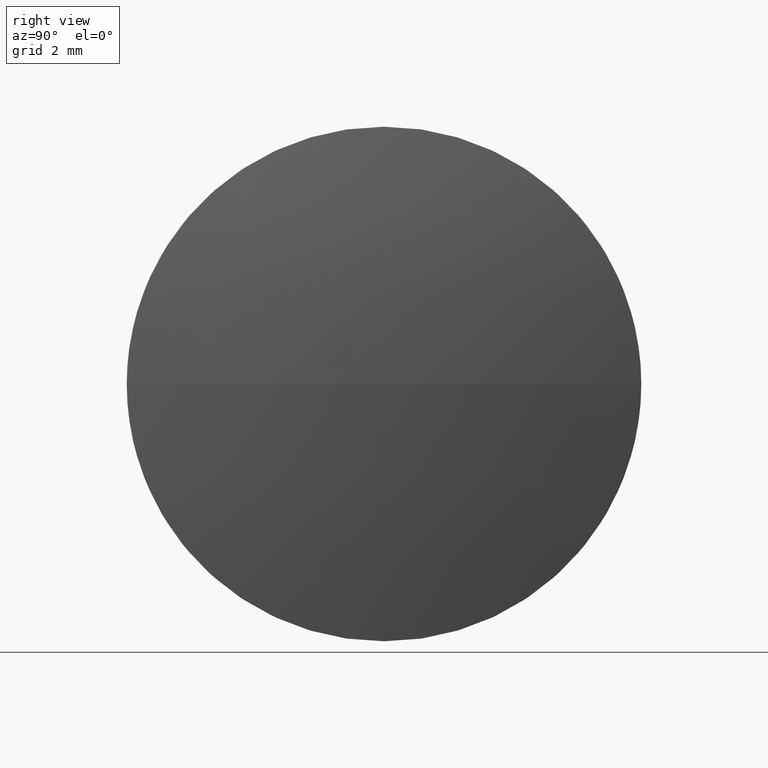
[diagram: clean part render]
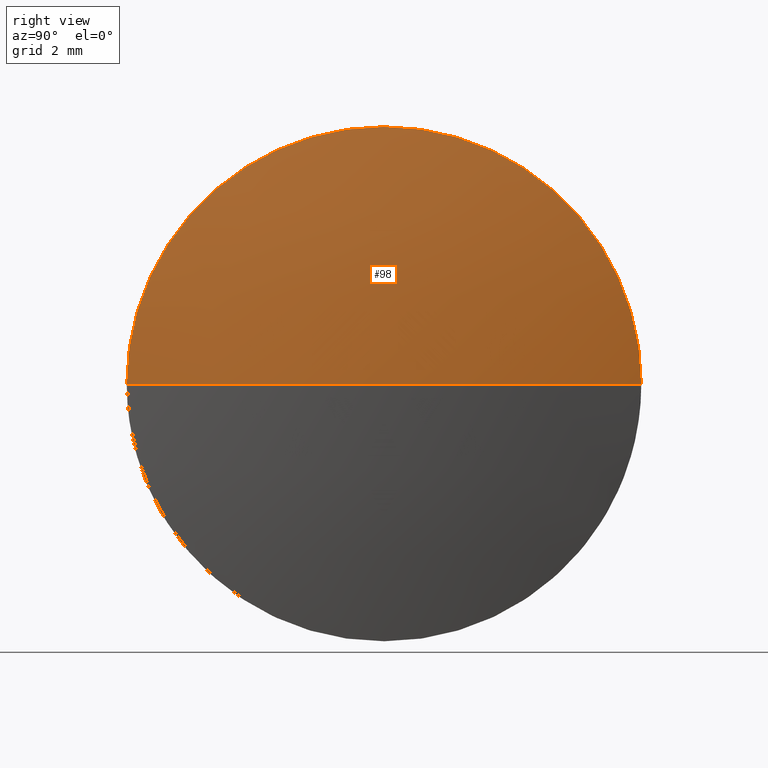
[diagram: same view with one face highlighted and labeled with its STEP entity id]
A machine part, right view. The second image highlights one B-rep face of the part: STEP entity #98.
In plain terms, the highlighted spherical surface has radius 41.4156 mm.
Its self-contained STEP definition (entity closure, byte-faithful):
#2 = EDGE_CURVE ( 'NONE', #76, #46, #73, .T. ) ;
#3 = SPHERICAL_SURFACE ( 'NONE', #153, 41.41564102564099400 ) ;
#5 = EDGE_CURVE ( 'NONE', #178, #121, #142, .T. ) ;
#7 = DIRECTION ( 'NONE',  ( 0.0000000000000000000, 0.0000000000000000000, 1.000000000000000000 ) ) ;
#10 = CARTESIAN_POINT ( 'NONE',  ( 609.6443734842783900, 155.6021442105514700, 0.0000000000000000000 ) ) ;
#12 = CIRCLE ( 'NONE', #79, 41.41564102564099400 ) ;
#20 = EDGE_CURVE ( 'NONE', #46, #178, #84, .T. ) ;
#30 = AXIS2_PLACEMENT_3D ( 'NONE', #33, #150, #166 ) ;
#33 = CARTESIAN_POINT ( 'NONE',  ( 569.0087324586373800, 147.6021442105514400, 0.0000000000000000000 ) ) ;
#46 = VERTEX_POINT ( 'NONE', #133 ) ;
#53 = DIRECTION ( 'NONE',  ( 0.0000000000000000000, 0.0000000000000000000, 1.000000000000000000 ) ) ;
#58 = EDGE_CURVE ( 'NONE', #76, #121, #12, .T. ) ;
#60 = DIRECTION ( 'NONE',  ( -0.0000000000000000000, 0.0000000000000000000, 1.000000000000000000 ) ) ;
#61 = EDGE_LOOP ( 'NONE', ( #181, #129, #167, #80 ) ) ;
#64 = CARTESIAN_POINT ( 'NONE',  ( 569.0087324586373800, 147.6021442105514400, 0.0000000000000000000 ) ) ;
#65 = DIRECTION ( 'NONE',  ( -1.000000000000000000, -0.0000000000000000000, -0.0000000000000000000 ) ) ;
#73 = CIRCLE ( 'NONE', #30, 41.41564102564099400 ) ;
#76 = VERTEX_POINT ( 'NONE', #86 ) ;
#77 = CARTESIAN_POINT ( 'NONE',  ( 609.6443734842783900, 147.6021442105515000, 0.0000000000000000000 ) ) ;
#79 = AXIS2_PLACEMENT_3D ( 'NONE', #104, #60, #176 ) ;
#80 = ORIENTED_EDGE ( 'NONE', *, *, #20, .F. ) ;
#84 = CIRCLE ( 'NONE', #157, 7.999999999999979600 ) ;
#86 = CARTESIAN_POINT ( 'NONE',  ( 610.4243734842783600, 147.6021442105514400, 0.0000000000000000000 ) ) ;
#91 = DIRECTION ( 'NONE',  ( 0.0000000000000000000, 1.000000000000000000, 0.0000000000000000000 ) ) ;
#93 = DIRECTION ( 'NONE',  ( -0.0000000000000000000, 0.0000000000000000000, -1.000000000000000000 ) ) ;
#95 = DIRECTION ( 'NONE',  ( -1.000000000000000000, -0.0000000000000000000, -0.0000000000000000000 ) ) ;
#98 = ADVANCED_FACE ( 'NONE', ( #185 ), #3, .T. ) ;
#104 = CARTESIAN_POINT ( 'NONE',  ( 569.0087324586373800, 147.6021442105514400, 0.0000000000000000000 ) ) ;
#121 = VERTEX_POINT ( 'NONE', #10 ) ;
#129 = ORIENTED_EDGE ( 'NONE', *, *, #58, .T. ) ;
#133 = CARTESIAN_POINT ( 'NONE',  ( 609.6443734842783900, 139.6021442105515000, -9.797174393178782300E-016 ) ) ;
#142 = CIRCLE ( 'NONE', #145, 7.999999999999979600 ) ;
#145 = AXIS2_PLACEMENT_3D ( 'NONE', #77, #95, #53 ) ;
#148 = CARTESIAN_POINT ( 'NONE',  ( 609.6443734842783900, 147.6021442105515000, 0.0000000000000000000 ) ) ;
#150 = DIRECTION ( 'NONE',  ( 0.0000000000000000000, 1.224646799147353200E-016, -1.000000000000000000 ) ) ;
#153 = AXIS2_PLACEMENT_3D ( 'NONE', #64, #93, #91 ) ;
#157 = AXIS2_PLACEMENT_3D ( 'NONE', #148, #65, #7 ) ;
#166 = DIRECTION ( 'NONE',  ( 0.0000000000000000000, 1.000000000000000000, 1.224646799147353200E-016 ) ) ;
#167 = ORIENTED_EDGE ( 'NONE', *, *, #5, .F. ) ;
#170 = CARTESIAN_POINT ( 'NONE',  ( 609.6443734842783900, 147.6021442105515000, 7.999999999999979600 ) ) ;
#176 = DIRECTION ( 'NONE',  ( 1.000000000000000000, 0.0000000000000000000, 0.0000000000000000000 ) ) ;
#178 = VERTEX_POINT ( 'NONE', #170 ) ;
#181 = ORIENTED_EDGE ( 'NONE', *, *, #2, .F. ) ;
#185 = FACE_OUTER_BOUND ( 'NONE', #61, .T. ) ;